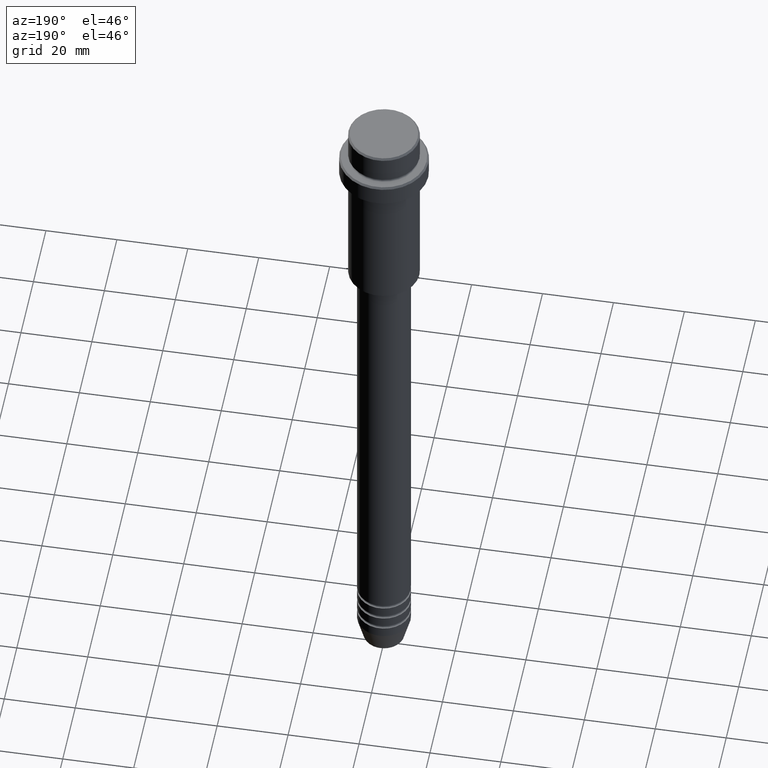
[diagram: clean part render]
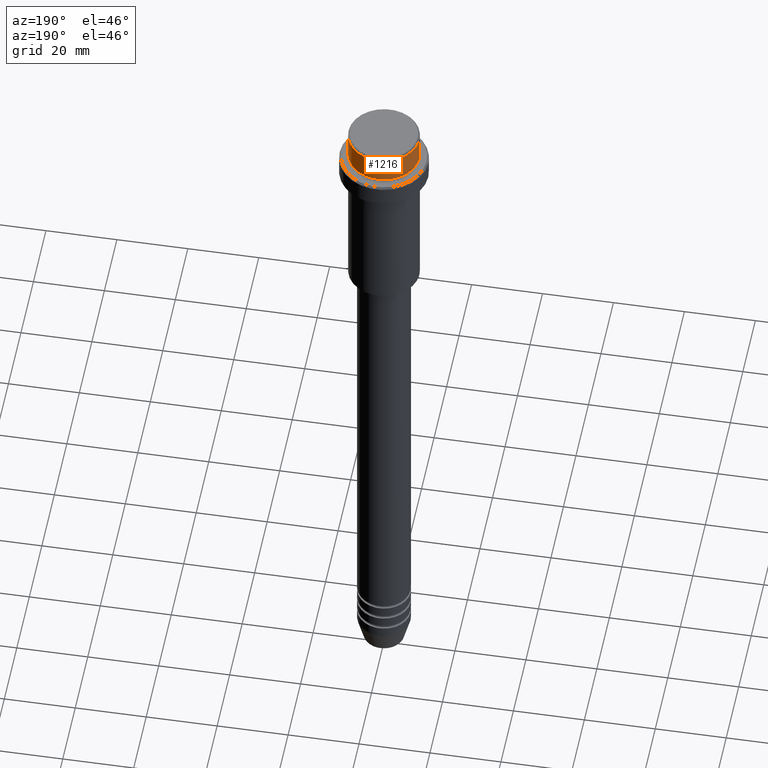
[diagram: same view with one face highlighted and labeled with its STEP entity id]
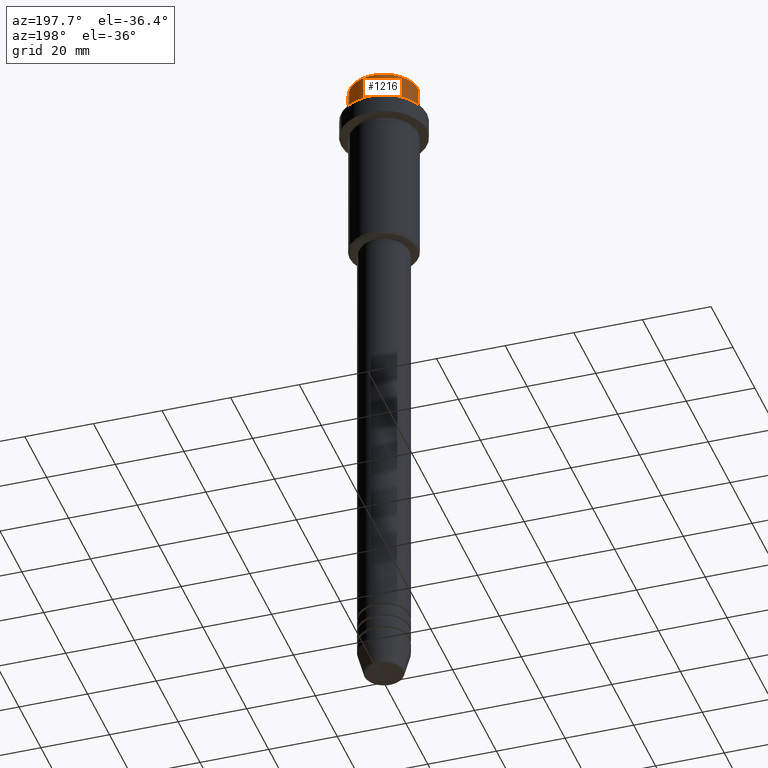
[diagram: same view with one face highlighted and labeled with its STEP entity id]
A machine part, auxiliary view. The second image highlights one B-rep face of the part: STEP entity #1216.
A second angle (auxiliary view) of the same face is appended — the face is thin or edge-on in the first view.
In plain terms, the highlighted cylindrical surface (edge-blend (fillet) strip) has radius 10 mm, axis along (-0, -0, 1).
Its self-contained STEP definition (entity closure, byte-faithful):
#9 = EDGE_CURVE ( 'NONE', #114, #1183, #102, .T. ) ;
#102 = LINE ( 'NONE', #977, #666 ) ;
#113 = CIRCLE ( 'NONE', #257, 9.999999999999998224 ) ;
#114 = VERTEX_POINT ( 'NONE', #758 ) ;
#127 = CARTESIAN_POINT ( 'NONE',  ( 9.999999999999998224, 0.000000000000000000, 0.000000000000000000 ) ) ;
#158 = AXIS2_PLACEMENT_3D ( 'NONE', #1294, #1079, #872 ) ;
#161 = VECTOR ( 'NONE', #998, 1000.000000000000000 ) ;
#210 = VERTEX_POINT ( 'NONE', #400 ) ;
#254 = ORIENTED_EDGE ( 'NONE', *, *, #1101, .T. ) ;
#257 = AXIS2_PLACEMENT_3D ( 'NONE', #1037, #379, #506 ) ;
#310 = DIRECTION ( 'NONE',  ( 1.000000000000000000, 0.000000000000000000, 0.000000000000000000 ) ) ;
#321 = CARTESIAN_POINT ( 'NONE',  ( -9.999999999999998224, 1.224646799147353059E-15, -0.4999999999999970024 ) ) ;
#368 = CIRCLE ( 'NONE', #158, 9.999999999999998224 ) ;
#379 = DIRECTION ( 'NONE',  ( 0.000000000000000000, 0.000000000000000000, -1.000000000000000000 ) ) ;
#400 = CARTESIAN_POINT ( 'NONE',  ( 9.999999999999998224, 0.000000000000000000, -7.999999999999998224 ) ) ;
#422 = CARTESIAN_POINT ( 'NONE',  ( 9.999999999999998224, 0.000000000000000000, -0.4999999999999970024 ) ) ;
#429 = CARTESIAN_POINT ( 'NONE',  ( 0.000000000000000000, 0.000000000000000000, 0.000000000000000000 ) ) ;
#464 = AXIS2_PLACEMENT_3D ( 'NONE', #429, #1384, #310 ) ;
#506 = DIRECTION ( 'NONE',  ( 1.000000000000000000, 0.000000000000000000, 0.000000000000000000 ) ) ;
#535 = FACE_OUTER_BOUND ( 'NONE', #739, .T. ) ;
#666 = VECTOR ( 'NONE', #767, 1000.000000000000000 ) ;
#678 = LINE ( 'NONE', #127, #161 ) ;
#739 = EDGE_LOOP ( 'NONE', ( #1353, #929, #254, #849 ) ) ;
#758 = CARTESIAN_POINT ( 'NONE',  ( -9.999999999999998224, 1.224646799147353059E-15, -7.999999999999998224 ) ) ;
#767 = DIRECTION ( 'NONE',  ( -0.000000000000000000, -0.000000000000000000, 1.000000000000000000 ) ) ;
#847 = EDGE_CURVE ( 'NONE', #210, #114, #368, .T. ) ;
#849 = ORIENTED_EDGE ( 'NONE', *, *, #982, .F. ) ;
#872 = DIRECTION ( 'NONE',  ( 1.000000000000000000, 0.000000000000000000, 0.000000000000000000 ) ) ;
#929 = ORIENTED_EDGE ( 'NONE', *, *, #9, .T. ) ;
#977 = CARTESIAN_POINT ( 'NONE',  ( -9.999999999999998224, 1.224646799147353059E-15, 0.000000000000000000 ) ) ;
#982 = EDGE_CURVE ( 'NONE', #210, #1204, #678, .T. ) ;
#998 = DIRECTION ( 'NONE',  ( -0.000000000000000000, -0.000000000000000000, 1.000000000000000000 ) ) ;
#1037 = CARTESIAN_POINT ( 'NONE',  ( 0.000000000000000000, 0.000000000000000000, -0.4999999999999970024 ) ) ;
#1079 = DIRECTION ( 'NONE',  ( -0.000000000000000000, -0.000000000000000000, 1.000000000000000000 ) ) ;
#1101 = EDGE_CURVE ( 'NONE', #1183, #1204, #113, .T. ) ;
#1183 = VERTEX_POINT ( 'NONE', #321 ) ;
#1204 = VERTEX_POINT ( 'NONE', #422 ) ;
#1216 = ADVANCED_FACE ( 'NONE', ( #535 ), #1399, .T. ) ;
#1294 = CARTESIAN_POINT ( 'NONE',  ( 0.000000000000000000, 0.000000000000000000, -7.999999999999998224 ) ) ;
#1353 = ORIENTED_EDGE ( 'NONE', *, *, #847, .T. ) ;
#1384 = DIRECTION ( 'NONE',  ( -0.000000000000000000, -0.000000000000000000, 1.000000000000000000 ) ) ;
#1399 = CYLINDRICAL_SURFACE ( 'NONE', #464, 9.999999999999998224 ) ;